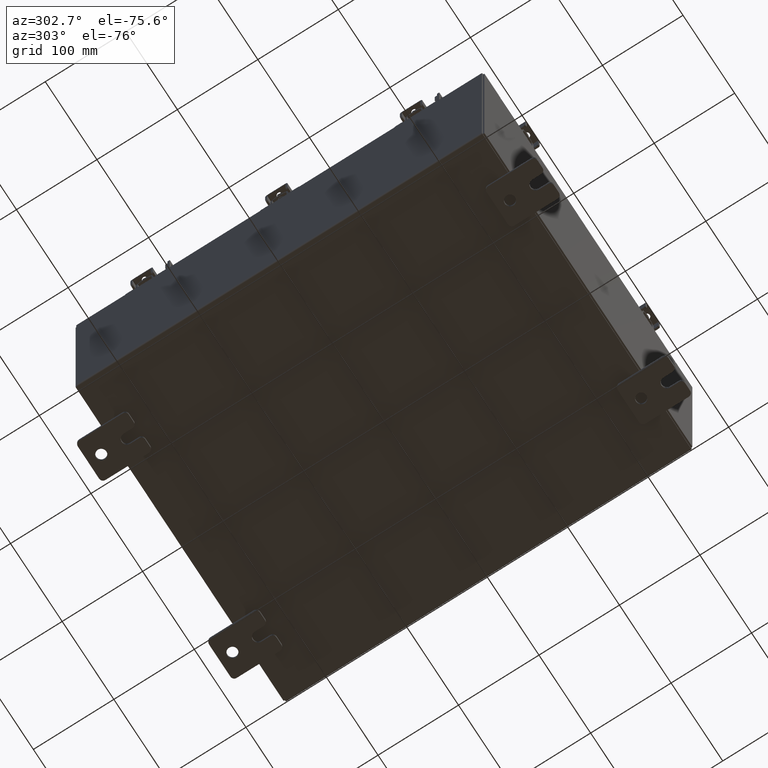
[diagram: clean part render]
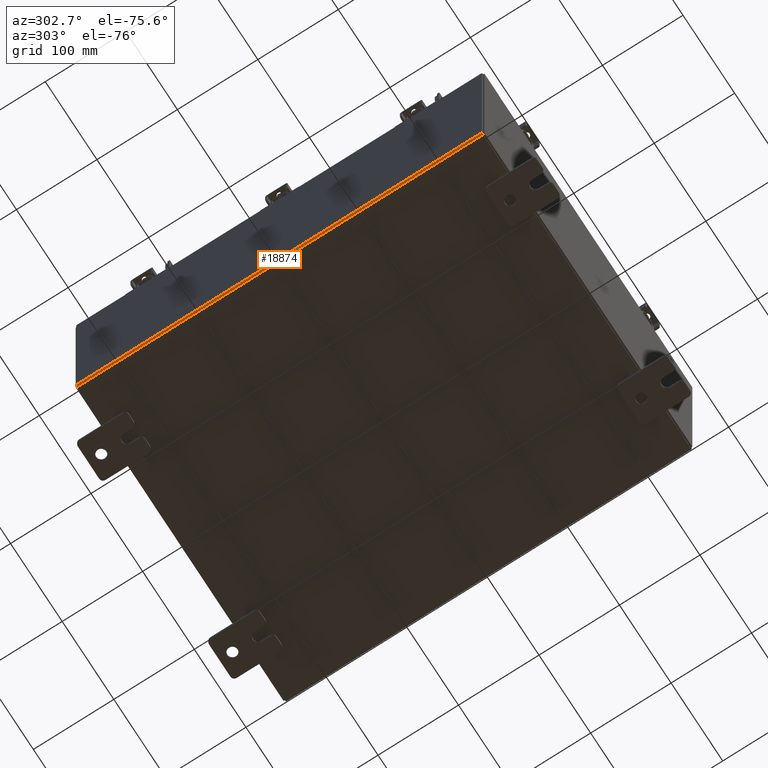
[diagram: same view with one face highlighted and labeled with its STEP entity id]
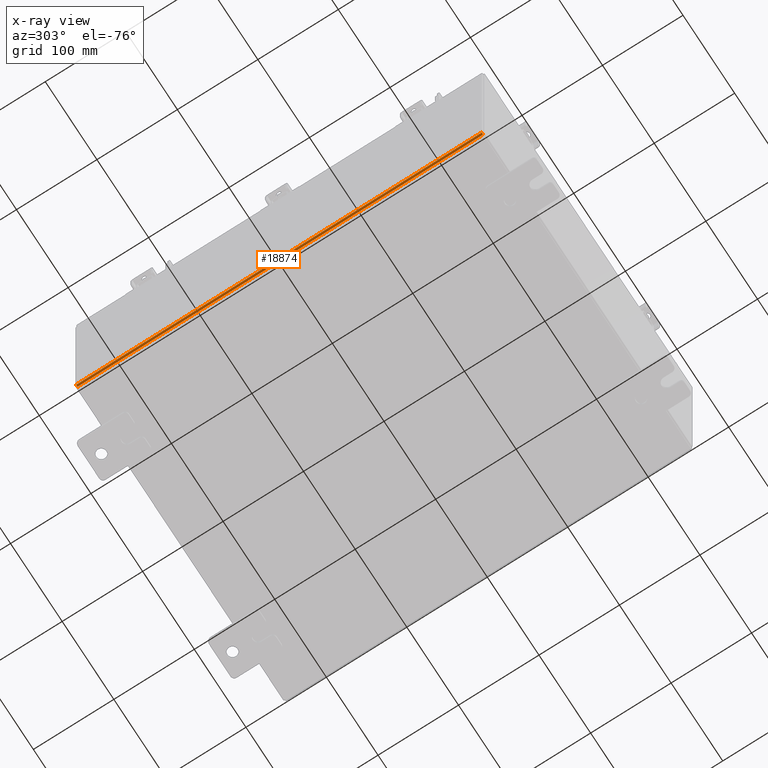
[diagram: x-ray of the same camera — body ghosted, the highlighted face saturated]
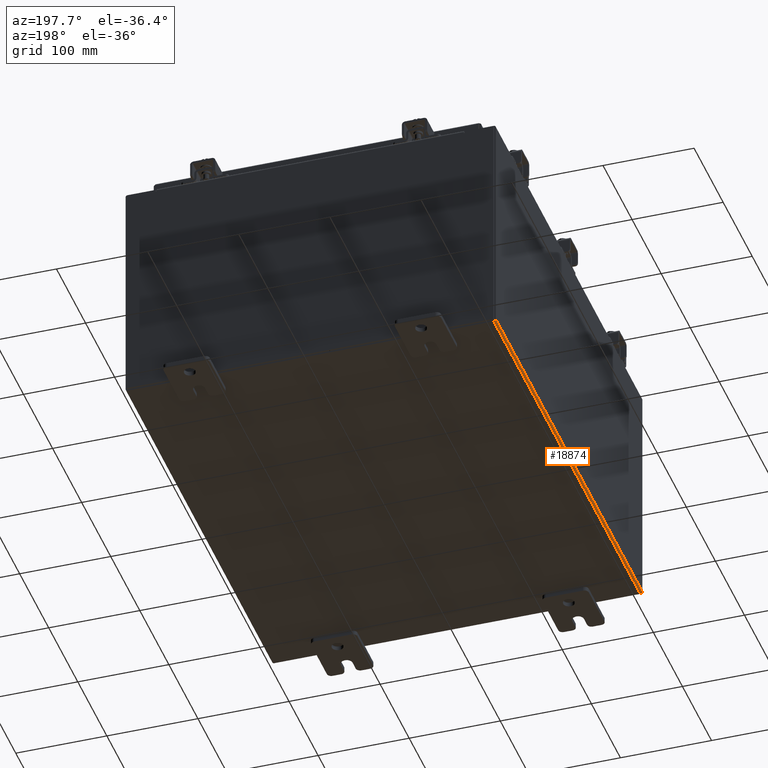
[diagram: same view with one face highlighted and labeled with its STEP entity id]
A machine part, auxiliary view. The second image highlights one B-rep face of the part: STEP entity #18874.
The next image is the same camera in x-ray: the body ghosted, the highlighted face saturated — about 0% of this face is hidden behind the body in this view.
A second angle (auxiliary view) of the same face is appended — the face is thin or edge-on in the first view.
In plain terms, the highlighted cylindrical surface (edge-blend (fillet) strip) has radius 2.2276 mm, axis along (0, -1, 0).
Its self-contained STEP definition (entity closure, byte-faithful):
#512 = EDGE_CURVE ( 'NONE', #11720, #20987, #19184, .T. ) ;
#614 = CYLINDRICAL_SURFACE ( 'NONE', #10514, 0.08770000000000026400 ) ;
#1158 = CIRCLE ( 'NONE', #7014, 0.08770000000000009700 ) ;
#1171 = FACE_OUTER_BOUND ( 'NONE', #16582, .T. ) ;
#1397 = DIRECTION ( 'NONE',  ( -0.0000000000000000000, 1.000000000000000000, -0.0000000000000000000 ) ) ;
#1626 = DIRECTION ( 'NONE',  ( 0.0000000000000000000, 0.0000000000000000000, -1.000000000000000000 ) ) ;
#2249 = VECTOR ( 'NONE', #1397, 39.37007874015748100 ) ;
#2394 = ORIENTED_EDGE ( 'NONE', *, *, #512, .F. ) ;
#3397 = AXIS2_PLACEMENT_3D ( 'NONE', #7801, #7960, #7954 ) ;
#6233 = CARTESIAN_POINT ( 'NONE',  ( -7.999999999999997300, 9.925299999999998200, 0.01299999999999984300 ) ) ;
#6688 = CARTESIAN_POINT ( 'NONE',  ( -7.999999999999997300, -9.925300000000000000, 0.01299999999999984700 ) ) ;
#7014 = AXIS2_PLACEMENT_3D ( 'NONE', #22405, #12077, #1626 ) ;
#7203 = LINE ( 'NONE', #9536, #15804 ) ;
#7801 = CARTESIAN_POINT ( 'NONE',  ( -7.912299999999997400, 9.925299999999998200, 0.01300000000000015200 ) ) ;
#7954 = DIRECTION ( 'NONE',  ( 0.0000000000000000000, 0.0000000000000000000, -1.000000000000000000 ) ) ;
#7960 = DIRECTION ( 'NONE',  ( -0.0000000000000000000, 1.000000000000000000, -0.0000000000000000000 ) ) ;
#9536 = CARTESIAN_POINT ( 'NONE',  ( -7.912299999999997400, -9.925300000000001800, -0.07469999999999994700 ) ) ;
#9613 = DIRECTION ( 'NONE',  ( -1.000000000000000000, 0.0000000000000000000, -3.528701887483225300E-015 ) ) ;
#9709 = EDGE_CURVE ( 'NONE', #10688, #20987, #20661, .T. ) ;
#9798 = EDGE_CURVE ( 'NONE', #10688, #21188, #1158, .T. ) ;
#10514 = AXIS2_PLACEMENT_3D ( 'NONE', #18185, #19882, #9613 ) ;
#10688 = VERTEX_POINT ( 'NONE', #6688 ) ;
#11289 = DIRECTION ( 'NONE',  ( -0.0000000000000000000, 1.000000000000000000, -0.0000000000000000000 ) ) ;
#11720 = VERTEX_POINT ( 'NONE', #16262 ) ;
#12077 = DIRECTION ( 'NONE',  ( 0.0000000000000000000, -1.000000000000000000, 0.0000000000000000000 ) ) ;
#13808 = CARTESIAN_POINT ( 'NONE',  ( -7.912299999999997400, -9.925300000000000000, -0.07469999999999994700 ) ) ;
#14326 = ORIENTED_EDGE ( 'NONE', *, *, #9798, .F. ) ;
#14399 = ORIENTED_EDGE ( 'NONE', *, *, #20377, .F. ) ;
#15804 = VECTOR ( 'NONE', #11289, 39.37007874015748100 ) ;
#16262 = CARTESIAN_POINT ( 'NONE',  ( -7.912299999999997400, 9.925299999999998200, -0.07470000000000000300 ) ) ;
#16582 = EDGE_LOOP ( 'NONE', ( #14399, #14326, #17972, #2394 ) ) ;
#17972 = ORIENTED_EDGE ( 'NONE', *, *, #9709, .T. ) ;
#18185 = CARTESIAN_POINT ( 'NONE',  ( -7.912299999999997400, -9.925300000000001800, 0.01300000000000015200 ) ) ;
#18874 = ADVANCED_FACE ( 'NONE', ( #1171 ), #614, .T. ) ;
#19184 = CIRCLE ( 'NONE', #3397, 0.08770000000000009700 ) ;
#19882 = DIRECTION ( 'NONE',  ( 0.0000000000000000000, -1.000000000000000000, 0.0000000000000000000 ) ) ;
#20377 = EDGE_CURVE ( 'NONE', #21188, #11720, #7203, .T. ) ;
#20661 = LINE ( 'NONE', #22184, #2249 ) ;
#20987 = VERTEX_POINT ( 'NONE', #6233 ) ;
#21188 = VERTEX_POINT ( 'NONE', #13808 ) ;
#22184 = CARTESIAN_POINT ( 'NONE',  ( -7.999999999999997300, 9.925299999999998200, 0.01299999999999984700 ) ) ;
#22405 = CARTESIAN_POINT ( 'NONE',  ( -7.912299999999997400, -9.925300000000000000, 0.01300000000000015200 ) ) ;